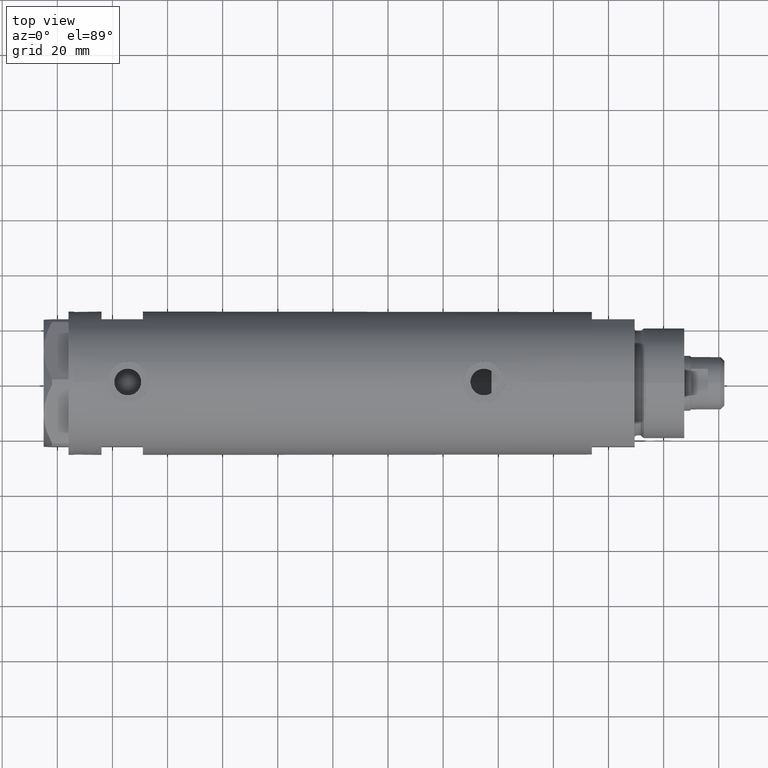
[diagram: clean part render]
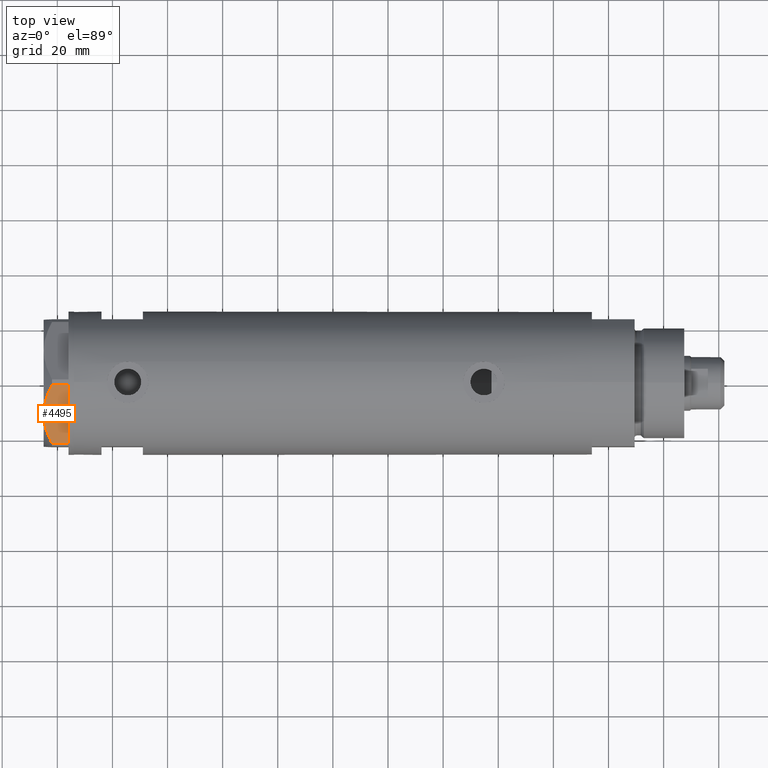
[diagram: same view with one face highlighted and labeled with its STEP entity id]
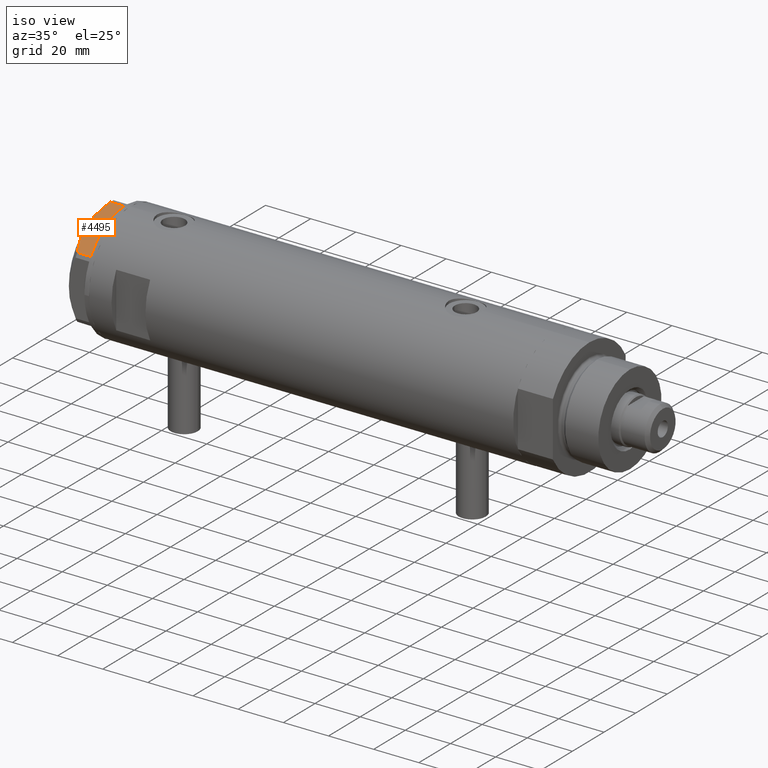
[diagram: same view with one face highlighted and labeled with its STEP entity id]
A machine part, top view. The second image highlights one B-rep face of the part: STEP entity #4495.
A second angle (iso view) of the same face is appended — the face is thin or edge-on in the first view.
In plain terms, the highlighted planar face has unit normal (-0, 0.5, -0.866).
Its self-contained STEP definition (entity closure, byte-faithful):
#44 = CARTESIAN_POINT ( 'NONE',  ( -11.49999999999990585, -19.91858428704219364, 9.000000000000000000 ) ) ;
#50 = EDGE_CURVE ( 'NONE', #1767, #212, #2717, .T. ) ;
#56 = VERTEX_POINT ( 'NONE', #4741 ) ;
#176 = EDGE_CURVE ( 'NONE', #212, #3908, #1204, .T. ) ;
#206 = VECTOR ( 'NONE', #3196, 1000.000000000000000 ) ;
#212 = VERTEX_POINT ( 'NONE', #4353 ) ;
#213 = EDGE_CURVE ( 'NONE', #4688, #3908, #1000, .T. ) ;
#237 = DIRECTION ( 'NONE',  ( 0.4999999999999950595, 0.8660254037844415942, -0.000000000000000000 ) ) ;
#262 = CARTESIAN_POINT ( 'NONE',  ( -22.99999999999990408, -13.27905619136147841, 9.000000000000000000 ) ) ;
#336 = DIRECTION ( 'NONE',  ( -0.8660254037844414832, 0.4999999999999950040, 0.000000000000000000 ) ) ;
#510 = EDGE_LOOP ( 'NONE', ( #2360, #4178, #2709, #2095, #4638, #4177, #1520 ) ) ;
#572 = CARTESIAN_POINT ( 'NONE',  ( -11.95865151389046588, -19.65378171203314395, 9.000000000000095923 ) ) ;
#643 = DIRECTION ( 'NONE',  ( -0.000000000000000000, 0.000000000000000000, -1.000000000000000000 ) ) ;
#702 = AXIS2_PLACEMENT_3D ( 'NONE', #262, #237, #336 ) ;
#750 = CARTESIAN_POINT ( 'NONE',  ( -9.678244919010385416, -20.97037507344893115, 9.000000000000088818 ) ) ;
#911 = CARTESIAN_POINT ( 'NONE',  ( -11.49999999999990585, -19.91858428704219364, 9.000000000000000000 ) ) ;
#994 = CARTESIAN_POINT ( 'NONE',  ( -15.16323225988328538, -17.80361615569431777, 8.637313967156948991 ) ) ;
#1000 = B_SPLINE_CURVE_WITH_KNOTS ( 'NONE', 3,
 ( #44, #750, #3558, #4025, #1232, #1255, #1646, #2423, #4828, #1201 ),
 .UNSPECIFIED., .F., .F.,
 ( 4, 2, 2, 2, 4 ),
 ( 0.01376519981810312397, 0.01998941321701459134, 0.02154546656674245428, 0.02310151991647032069, 0.02621362661592604310 ),
 .UNSPECIFIED. ) ;
#1119 = LINE ( 'NONE', #4243, #3041 ) ;
#1149 = DIRECTION ( 'NONE',  ( 0.8660254037844415942, -0.4999999999999950595, 0.000000000000000000 ) ) ;
#1201 = CARTESIAN_POINT ( 'NONE',  ( -0.9699484522404678843, -25.99811238272155123, 5.983800287808756835 ) ) ;
#1204 = LINE ( 'NONE', #4408, #2021 ) ;
#1232 = CARTESIAN_POINT ( 'NONE',  ( -5.229981517799206614, -23.53858114556453529, 7.892128867758890998 ) ) ;
#1241 = CARTESIAN_POINT ( 'NONE',  ( -22.99999999999990408, -13.27905619136147841, 0.000000000000000000 ) ) ;
#1255 = CARTESIAN_POINT ( 'NONE',  ( -4.357207709417335373, -24.04247733877546267, 7.570552255230290406 ) ) ;
#1520 = ORIENTED_EDGE ( 'NONE', *, *, #213, .F. ) ;
#1646 = CARTESIAN_POINT ( 'NONE',  ( -3.925137811031424562, -24.29193301091729396, 7.397272853992039821 ) ) ;
#1699 = CARTESIAN_POINT ( 'NONE',  ( -13.34348161667001698, -18.85424967941148822, 8.907842277728438063 ) ) ;
#1767 = VERTEX_POINT ( 'NONE', #2676 ) ;
#1780 = CARTESIAN_POINT ( 'NONE',  ( -0.9699484522404678843, -25.99811238272155123, 5.983800287808756835 ) ) ;
#1937 = EDGE_CURVE ( 'NONE', #2275, #56, #3225, .T. ) ;
#2021 = VECTOR ( 'NONE', #3612, 1000.000000000000000 ) ;
#2074 = CARTESIAN_POINT ( 'NONE',  ( -22.03005154776132102, -13.83905619136147536, 0.000000000000000000 ) ) ;
#2084 = CARTESIAN_POINT ( 'NONE',  ( -16.05322244309625290, -17.28978008384019915, 8.426899937603781865 ) ) ;
#2095 = ORIENTED_EDGE ( 'NONE', *, *, #4646, .T. ) ;
#2275 = VERTEX_POINT ( 'NONE', #2074 ) ;
#2360 = ORIENTED_EDGE ( 'NONE', *, *, #5186, .F. ) ;
#2366 = CARTESIAN_POINT ( 'NONE',  ( -22.99999999999990408, -13.27905619136147841, 0.000000000000000000 ) ) ;
#2384 = CARTESIAN_POINT ( 'NONE',  ( -11.49999999999990585, -19.91858428704219364, 9.000000000000000000 ) ) ;
#2423 = CARTESIAN_POINT ( 'NONE',  ( -2.640413878808339110, -25.03366871902064261, 6.844201024439214187 ) ) ;
#2433 = DIRECTION ( 'NONE',  ( 0.8660254037844415942, -0.4999999999999950595, 0.000000000000000000 ) ) ;
#2460 = LINE ( 'NONE', #4037, #206 ) ;
#2533 = CARTESIAN_POINT ( 'NONE',  ( -18.67981377008999644, -15.77331687414923778, 7.629374868826104716 ) ) ;
#2564 = CARTESIAN_POINT ( 'NONE',  ( -20.37350567916426058, -14.79546339452094017, 6.877782426143456362 ) ) ;
#2676 = CARTESIAN_POINT ( 'NONE',  ( -0.9999999999997406519, -25.98076211353317433, 0.000000000000000000 ) ) ;
#2709 = ORIENTED_EDGE ( 'NONE', *, *, #1937, .T. ) ;
#2717 = LINE ( 'NONE', #2366, #4033 ) ;
#2929 = CARTESIAN_POINT ( 'NONE',  ( -12.41906678023023325, -19.38796083407287085, 8.981686407609506873 ) ) ;
#2968 = VERTEX_POINT ( 'NONE', #3106 ) ;
#3041 = VECTOR ( 'NONE', #643, 1000.000000000000000 ) ;
#3106 = CARTESIAN_POINT ( 'NONE',  ( -22.03005154776146313, -13.83905619136139364, 5.983800287807550689 ) ) ;
#3196 = DIRECTION ( 'NONE',  ( 0.8660254037844415942, -0.4999999999999950595, 0.000000000000000000 ) ) ;
#3225 = LINE ( 'NONE', #1241, #3782 ) ;
#3345 = CARTESIAN_POINT ( 'NONE',  ( -22.03005154776146313, -13.83905619136139364, 5.983800287807550689 ) ) ;
#3346 = EDGE_CURVE ( 'NONE', #2968, #2275, #1119, .T. ) ;
#3558 = CARTESIAN_POINT ( 'NONE',  ( -7.884645426990268824, -22.00591022298511490, 8.707651728477127762 ) ) ;
#3612 = DIRECTION ( 'NONE',  ( 0.000000000000000000, 0.000000000000000000, 1.000000000000000000 ) ) ;
#3687 = CARTESIAN_POINT ( 'NONE',  ( -13.80210138309694301, -18.58946543380922378, 8.852712638955804181 ) ) ;
#3782 = VECTOR ( 'NONE', #2433, 1000.000000000000000 ) ;
#3908 = VERTEX_POINT ( 'NONE', #1780 ) ;
#3926 = FACE_OUTER_BOUND ( 'NONE', #510, .T. ) ;
#4025 = CARTESIAN_POINT ( 'NONE',  ( -5.671686373603866294, -23.28356272816335348, 8.040681765829727823 ) ) ;
#4033 = VECTOR ( 'NONE', #1149, 1000.000000000000000 ) ;
#4037 = CARTESIAN_POINT ( 'NONE',  ( -22.99999999999990408, -13.27905619136147841, 0.000000000000000000 ) ) ;
#4177 = ORIENTED_EDGE ( 'NONE', *, *, #176, .T. ) ;
#4178 = ORIENTED_EDGE ( 'NONE', *, *, #3346, .T. ) ;
#4243 = CARTESIAN_POINT ( 'NONE',  ( -22.03005154776132102, -13.83905619136147536, 9.000000000000000000 ) ) ;
#4266 = B_SPLINE_CURVE_WITH_KNOTS ( 'NONE', 3,
 ( #3345, #2564, #2533, #2084, #994, #3687, #1699, #2929, #572, #911 ),
 .UNSPECIFIED., .F., .F.,
 ( 4, 2, 2, 2, 4 ),
 ( 0.001228959670438514989, 0.007497079744270818830, 0.01063113978118697227, 0.01219816979964504812, 0.01376519981810312397 ),
 .UNSPECIFIED. ) ;
#4353 = CARTESIAN_POINT ( 'NONE',  ( -0.9699484522383943208, -25.99811238272274494, 0.000000000000000000 ) ) ;
#4408 = CARTESIAN_POINT ( 'NONE',  ( -0.9699484522383977625, -25.99811238272274494, 9.000000000000000000 ) ) ;
#4495 = ADVANCED_FACE ( 'NONE', ( #3926 ), #4679, .F. ) ;
#4638 = ORIENTED_EDGE ( 'NONE', *, *, #50, .T. ) ;
#4646 = EDGE_CURVE ( 'NONE', #56, #1767, #2460, .T. ) ;
#4679 = PLANE ( 'NONE',  #702 ) ;
#4688 = VERTEX_POINT ( 'NONE', #2384 ) ;
#4741 = CARTESIAN_POINT ( 'NONE',  ( -21.99999999999998224, -13.85640646055105485, 0.000000000000000000 ) ) ;
#4828 = CARTESIAN_POINT ( 'NONE',  ( -1.799196345398571983, -25.51934588838179607, 6.431317509510369845 ) ) ;
#5186 = EDGE_CURVE ( 'NONE', #2968, #4688, #4266, .T. ) ;